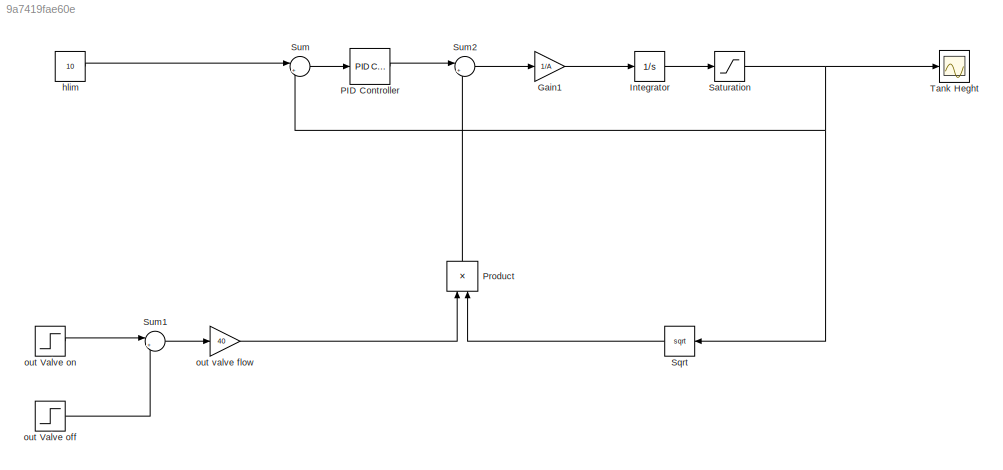
MODEL slx_9a7419fae60e
KIND model
CONFIG AbsTol = auto
CONFIG EnableMultiTasking = off
CONFIG FixedStep = auto
CONFIG InitFcn = A = 100 ;
CONFIG MaxStep = auto
CONFIG MinStep = auto
CONFIG RelTol = 1e-3
CONFIG SampleTimeConstraint = Unconstrained
CONFIG SolverName = VariableStepAuto
CONFIG StartTime = 0.0
CONFIG StopTime = 10.0
BLOCK [Gain] Gain1
  Gain = 1/A
BLOCK [Integrator] Integrator
BLOCK [Reference] PID Controller  REF=slpidlib/PID Controller
  LibrarySourceBlock = simulink/Continuous/PID Controller
  SourceBlock = slpidlib/PID Controller
  SourceType = PID 1dof
BLOCK [Product] Product
  NameLocation = right
BLOCK [Saturate] Saturation
  LowerLimit = 0
  UpperLimit = inf
BLOCK [Sqrt] Sqrt
  NameLocation = top
BLOCK [Sum] Sum
  Inputs = |+-
BLOCK [Sum] Sum1
  Inputs = |+-
BLOCK [Sum] Sum2
  Inputs = |+-
BLOCK [Scope] Tank Heght
  Floating = off
  NumInputPorts = 1
  ScopeSpecificationString = Simulink.scopes.TimeScopeBlockCfg('CurrentConfiguration', extmgr.ConfigurationSet(extmgr.Configuration('Core','General UI',true),extmgr.Configuration('Core','Source UI',true),extmgr.Configuration('Sources','WiredSimulink',true),extmgr.Configuration('Visuals','Time Domain',true,'SerializedDisplays',{struct('MinYLimReal','-1.28526','MaxYLimReal','11.5673','YLabelReal','','MinYLimMag','0.00000','MaxY...<+1587ch>
BLOCK [Constant] hlim
  Value = 10
BLOCK [Step] out Valve off
  SampleTime = 0
  Time = 100
BLOCK [Step] out Valve on
  SampleTime = 0
  Time = 40
BLOCK [Gain] out valve flow 
  Gain = 40
LINE Gain1:1 -> Integrator:1
LINE Integrator:1 -> Saturation:1
LINE PID Controller:1 -> Sum2:1
LINE Product:1 -> Sum2:2
NET Saturation:1 -> Sqrt:1, Sum:2, Tank Heght:1
LINE Sqrt:1 -> Product:2
LINE Sum1:1 -> out valve flow :1
LINE Sum2:1 -> Gain1:1
LINE Sum:1 -> PID Controller:1
LINE hlim:1 -> Sum:1
LINE out Valve off:1 -> Sum1:2
LINE out Valve on:1 -> Sum1:1
LINE out valve flow :1 -> Product:1
note: NET lines group one-source signal fan-out (src -> all destinations, sorted); 1:1 wires keep LINE
